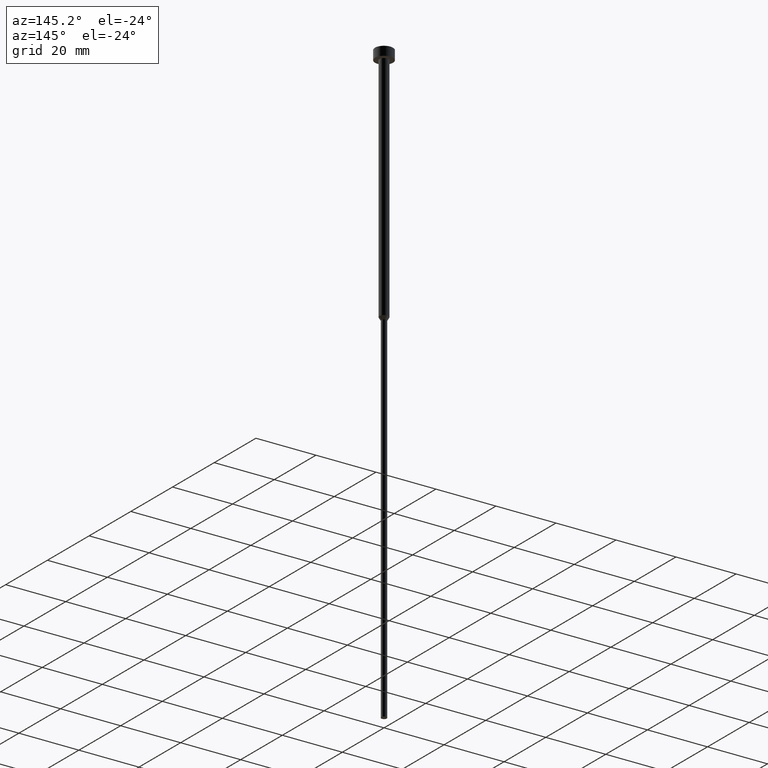
[diagram: clean part render]
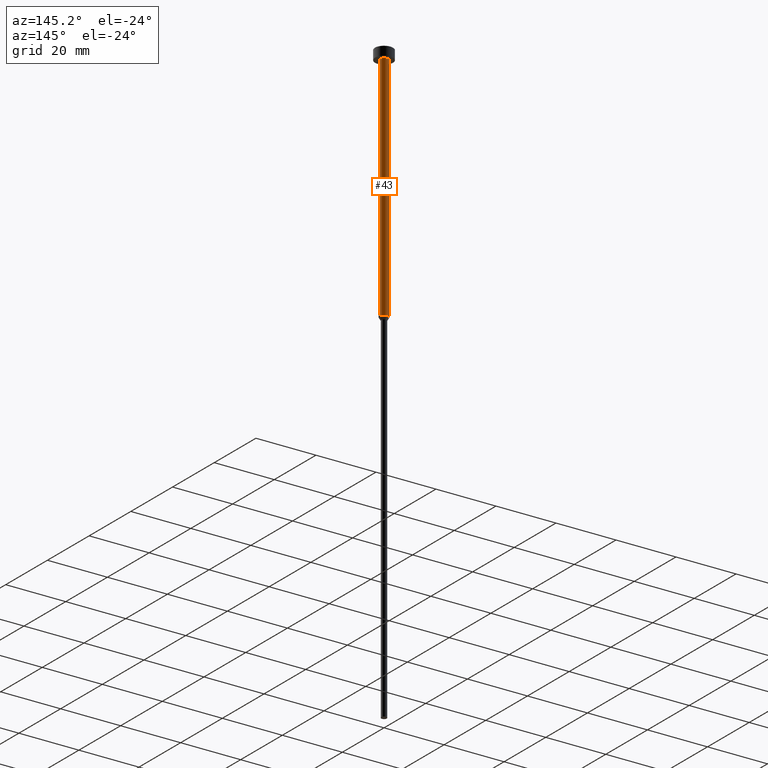
[diagram: same view with one face highlighted and labeled with its STEP entity id]
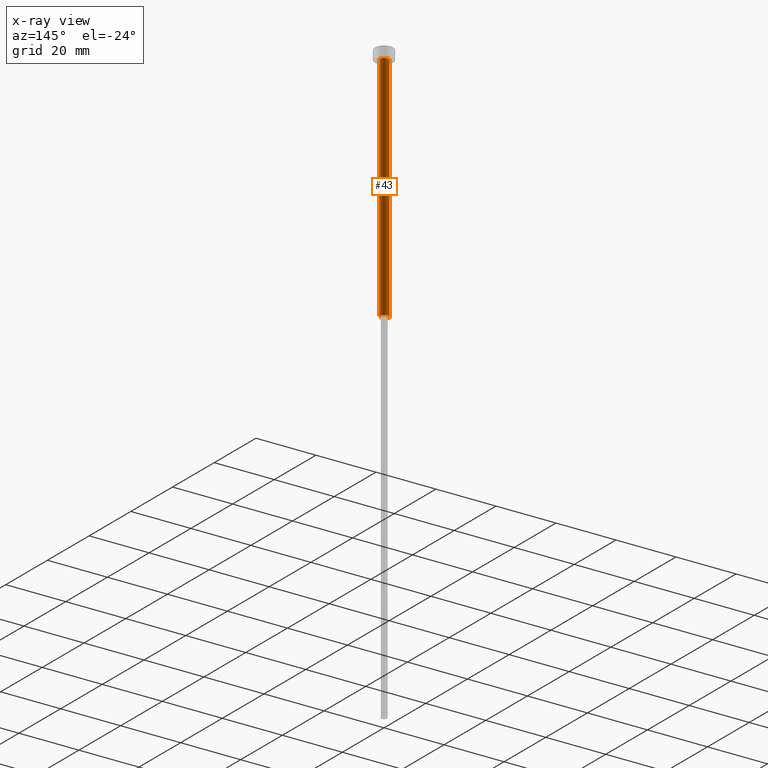
[diagram: x-ray of the same camera — body ghosted, the highlighted face saturated]
A machine part, auxiliary view. The second image highlights one B-rep face of the part: STEP entity #43.
The next image is the same camera in x-ray: the body ghosted, the highlighted face saturated — about 0% of this face is hidden behind the body in this view.
In plain terms, the highlighted cylindrical surface (edge-blend (fillet) strip) has radius 1.5 mm, axis along (-0, -0, 1).
Its self-contained STEP definition (entity closure, byte-faithful):
#19 = CARTESIAN_POINT ( 'NONE',  ( -1.500000000000000000, 1.836970198721029934E-16, 0.000000000000000000 ) ) ;
#31 = AXIS2_PLACEMENT_3D ( 'NONE', #295, #326, #176 ) ;
#43 = ADVANCED_FACE ( 'NONE', ( #95 ), #318, .T. ) ;
#56 = EDGE_CURVE ( 'NONE', #58, #189, #340, .T. ) ;
#58 = VERTEX_POINT ( 'NONE', #150 ) ;
#70 = DIRECTION ( 'NONE',  ( -0.000000000000000000, -0.000000000000000000, 1.000000000000000000 ) ) ;
#85 = VERTEX_POINT ( 'NONE', #320 ) ;
#95 = FACE_OUTER_BOUND ( 'NONE', #272, .T. ) ;
#104 = EDGE_CURVE ( 'NONE', #189, #274, #262, .T. ) ;
#121 = CARTESIAN_POINT ( 'NONE',  ( 0.000000000000000000, 0.000000000000000000, 0.000000000000000000 ) ) ;
#123 = DIRECTION ( 'NONE',  ( 1.000000000000000000, 0.000000000000000000, 0.000000000000000000 ) ) ;
#127 = CARTESIAN_POINT ( 'NONE',  ( 1.500000000000000000, 0.000000000000000000, 0.000000000000000000 ) ) ;
#149 = DIRECTION ( 'NONE',  ( 1.000000000000000000, 0.000000000000000000, 0.000000000000000000 ) ) ;
#150 = CARTESIAN_POINT ( 'NONE',  ( 1.500000000000000000, 0.000000000000000000, -80.00000000000000000 ) ) ;
#151 = CARTESIAN_POINT ( 'NONE',  ( -1.500000000000000000, 1.836970198721029934E-16, -3.000000000000000888 ) ) ;
#158 = DIRECTION ( 'NONE',  ( -0.000000000000000000, -0.000000000000000000, 1.000000000000000000 ) ) ;
#162 = ORIENTED_EDGE ( 'NONE', *, *, #257, .F. ) ;
#167 = DIRECTION ( 'NONE',  ( -0.000000000000000000, -0.000000000000000000, 1.000000000000000000 ) ) ;
#176 = DIRECTION ( 'NONE',  ( 1.000000000000000000, 0.000000000000000000, 0.000000000000000000 ) ) ;
#189 = VERTEX_POINT ( 'NONE', #290 ) ;
#200 = VECTOR ( 'NONE', #158, 1000.000000000000000 ) ;
#209 = AXIS2_PLACEMENT_3D ( 'NONE', #121, #317, #149 ) ;
#239 = EDGE_CURVE ( 'NONE', #85, #274, #276, .T. ) ;
#242 = ORIENTED_EDGE ( 'NONE', *, *, #56, .T. ) ;
#257 = EDGE_CURVE ( 'NONE', #58, #85, #329, .T. ) ;
#262 = LINE ( 'NONE', #19, #351 ) ;
#272 = EDGE_LOOP ( 'NONE', ( #242, #334, #291, #162 ) ) ;
#274 = VERTEX_POINT ( 'NONE', #151 ) ;
#276 = CIRCLE ( 'NONE', #31, 1.500000000000000000 ) ;
#290 = CARTESIAN_POINT ( 'NONE',  ( -1.500000000000000000, 1.836970198721029934E-16, -80.00000000000000000 ) ) ;
#291 = ORIENTED_EDGE ( 'NONE', *, *, #239, .F. ) ;
#295 = CARTESIAN_POINT ( 'NONE',  ( 0.000000000000000000, 0.000000000000000000, -3.000000000000000888 ) ) ;
#310 = AXIS2_PLACEMENT_3D ( 'NONE', #344, #167, #123 ) ;
#317 = DIRECTION ( 'NONE',  ( -0.000000000000000000, -0.000000000000000000, 1.000000000000000000 ) ) ;
#318 = CYLINDRICAL_SURFACE ( 'NONE', #209, 1.500000000000000000 ) ;
#320 = CARTESIAN_POINT ( 'NONE',  ( 1.500000000000000000, 0.000000000000000000, -3.000000000000000888 ) ) ;
#326 = DIRECTION ( 'NONE',  ( -0.000000000000000000, -0.000000000000000000, 1.000000000000000000 ) ) ;
#329 = LINE ( 'NONE', #127, #200 ) ;
#334 = ORIENTED_EDGE ( 'NONE', *, *, #104, .T. ) ;
#340 = CIRCLE ( 'NONE', #310, 1.500000000000000000 ) ;
#344 = CARTESIAN_POINT ( 'NONE',  ( 0.000000000000000000, 0.000000000000000000, -80.00000000000000000 ) ) ;
#351 = VECTOR ( 'NONE', #70, 1000.000000000000000 ) ;